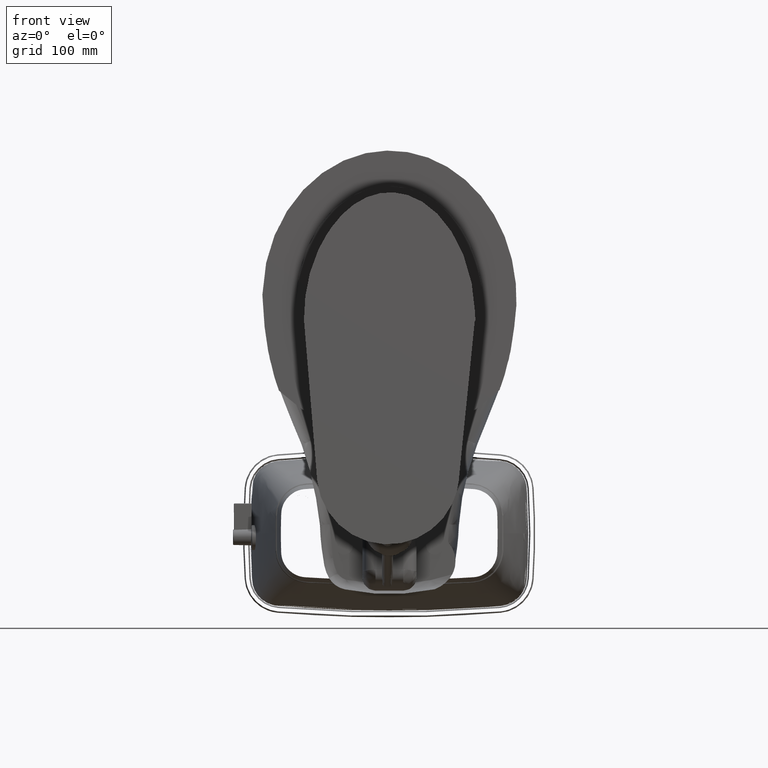
[diagram: clean part render]
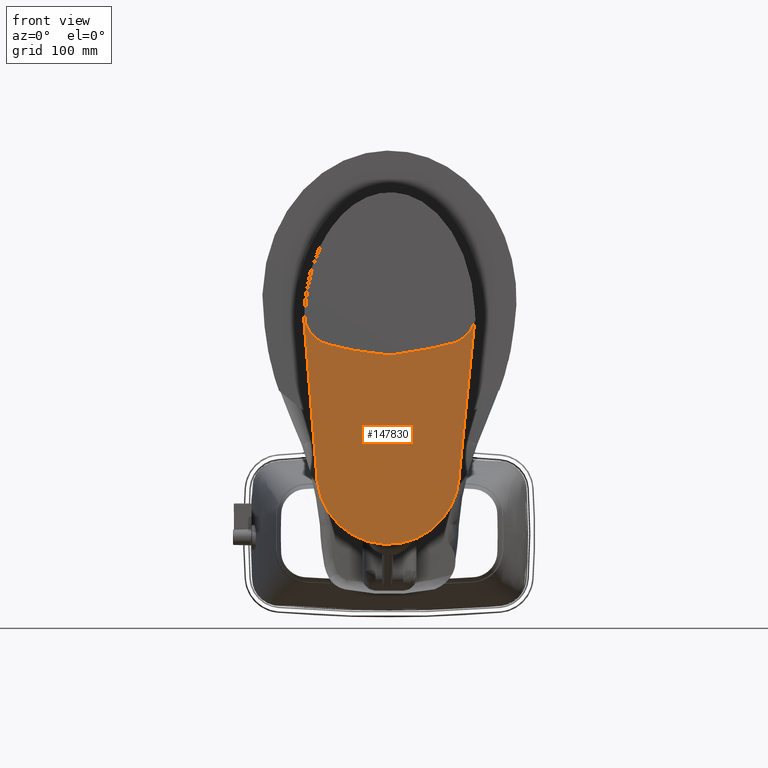
[diagram: same view with one face highlighted and labeled with its STEP entity id]
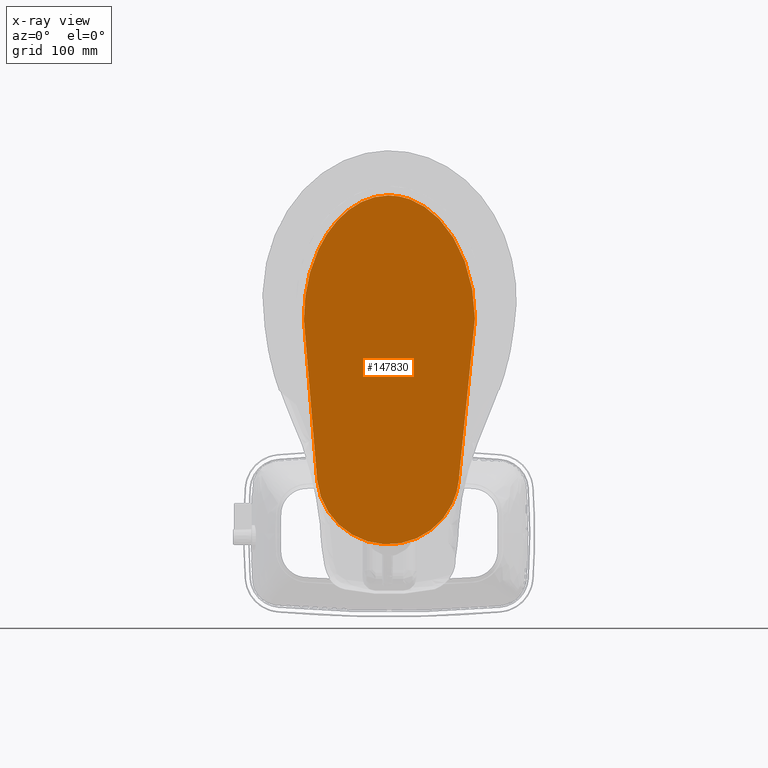
[diagram: x-ray of the same camera — body ghosted, the highlighted face saturated]
A machine part, front view. The second image highlights one B-rep face of the part: STEP entity #147830.
The next image is the same camera in x-ray: the body ghosted, the highlighted face saturated — about 0% of this face is hidden behind the body in this view.
In plain terms, the highlighted planar face has unit normal (0, -1, 0).
Its self-contained STEP definition (entity closure, byte-faithful):
#1370 = CARTESIAN_POINT ( 'NONE',  ( 4.193188648707874200, 5.541375388794488500, -1.777388185202513600E-019 ) ) ;
#9793 = CARTESIAN_POINT ( 'NONE',  ( -4.363099149692913200, 5.572962345098030600, 0.0000000000000000000 ) ) ;
#10912 = CARTESIAN_POINT ( 'NONE',  ( 5.149148719435038900, -5.368952237204724500, -1.818325990441472800E-017 ) ) ;
#11121 = CARTESIAN_POINT ( 'NONE',  ( -4.373053339677165100, 5.464362388194095900, -3.385141190425065800E-020 ) ) ;
#11348 = CARTESIAN_POINT ( 'NONE',  ( 4.205925246428346800, 5.371176392987401900, -1.129888320967306800E-018 ) ) ;
#11543 = B_SPLINE_CURVE_WITH_KNOTS ( 'NONE', 3,
 ( #195974, #103205, #179737, #149885 ),
 .UNSPECIFIED., .F., .F.,
 ( 4, 4 ),
 ( 0.0000000000000000000, 0.0001388203134932388600 ),
 .UNSPECIFIED. ) ;
#12370 = CARTESIAN_POINT ( 'NONE',  ( 4.208128983704330800, 5.316002305936220500, -1.707404996040164500E-017 ) ) ;
#16265 = CARTESIAN_POINT ( 'NONE',  ( 4.192721047973228600, 5.546374972435826200, 0.0000000000000000000 ) ) ;
#16813 = VERTEX_POINT ( 'NONE', #172116 ) ;
#20075 = CARTESIAN_POINT ( 'NONE',  ( -0.07156323617803149500, -11.60923061987795400, 0.0000000000000000000 ) ) ;
#21357 = AXIS2_PLACEMENT_3D ( 'NONE', #72159, #73479, #121529 ) ;
#27319 = ORIENTED_EDGE ( 'NONE', *, *, #55770, .T. ) ;
#28223 = ORIENTED_EDGE ( 'NONE', *, *, #179865, .T. ) ;
#28751 = CARTESIAN_POINT ( 'NONE',  ( -1.957749827311023600, 9.516992917024804700, 5.069541830281490200E-017 ) ) ;
#29394 = CARTESIAN_POINT ( 'NONE',  ( -4.362550821413385900, 5.578400135501968100, 0.0000000000000000000 ) ) ;
#33104 = VERTEX_POINT ( 'NONE', #162054 ) ;
#33602 = CARTESIAN_POINT ( 'NONE',  ( -1.690705847999212300, -11.38900763773621900, 6.315062271719722000E-017 ) ) ;
#34936 = CARTESIAN_POINT ( 'NONE',  ( -5.040019173074803400, -6.441023586877952000, 6.315062271719459500E-017 ) ) ;
#37409 = CARTESIAN_POINT ( 'NONE',  ( -0.07156323617803149500, -11.60923061987795400, 0.0000000000000000000 ) ) ;
#37637 = EDGE_CURVE ( 'NONE', #195428, #86074, #145080, .T. ) ;
#43182 = EDGE_CURVE ( 'NONE', #128004, #33104, #156888, .T. ) ;
#43370 = CARTESIAN_POINT ( 'NONE',  ( 3.070658474390275400, -10.42089057557480400, -1.818325990441169500E-017 ) ) ;
#44028 = CARTESIAN_POINT ( 'NONE',  ( 2.337701009358780000, -11.01859339509842800, -1.818325990441624400E-017 ) ) ;
#45010 = CARTESIAN_POINT ( 'NONE',  ( -0.7196515113094488200, 9.896003365968898200, 5.069541830293108000E-017 ) ) ;
#48082 = CARTESIAN_POINT ( 'NONE',  ( 4.193419528456299600, 5.538875324961417800, -1.777388185202513600E-019 ) ) ;
#51918 = CARTESIAN_POINT ( 'NONE',  ( -4.768252501224409900, -7.576169405370079000, 6.315062271717880500E-017 ) ) ;
#55770 = EDGE_CURVE ( 'NONE', #16813, #83980, #198882, .T. ) ;
#57609 = CARTESIAN_POINT ( 'NONE',  ( -4.379328572385827700, 5.355487882490158400, 1.195183497228115000E-016 ) ) ;
#58345 = CARTESIAN_POINT ( 'NONE',  ( 5.160757048409842600, -4.196737256389763400, -1.707404996040164500E-017 ) ) ;
#59018 = FACE_OUTER_BOUND ( 'NONE', #151690, .T. ) ;
#60271 = CARTESIAN_POINT ( 'NONE',  ( 0.7387837685848425200, -11.61700265281889900, -1.818325990441472800E-017 ) ) ;
#60583 = VERTEX_POINT ( 'NONE', #57609 ) ;
#60608 = CARTESIAN_POINT ( 'NONE',  ( 4.085053609940945100, 6.692739239895275600, 5.069541830286770600E-017 ) ) ;
#65395 = CARTESIAN_POINT ( 'NONE',  ( 4.192721047973228600, 5.546374972435826200, 0.0000000000000000000 ) ) ;
#68386 = CARTESIAN_POINT ( 'NONE',  ( 3.723690153071181500, -9.644873697066929100, -1.818325990441851500E-017 ) ) ;
#71736 = B_SPLINE_CURVE_WITH_KNOTS ( 'NONE', 4,
 ( #133719, #135033, #11121, #135682, #9793 ),
 .UNSPECIFIED., .F., .F.,
 ( 5, 5 ),
 ( 0.0000000000000000000, 0.005539880169654062100 ),
 .UNSPECIFIED. ) ;
#72159 = CARTESIAN_POINT ( 'NONE',  ( 0.001235436062688582800, -4.145643024350394300, 0.0000000000000000000 ) ) ;
#73479 = DIRECTION ( 'NONE',  ( 0.0000000000000000000, 0.0000000000000000000, -1.000000000000000000 ) ) ;
#82359 = CARTESIAN_POINT ( 'NONE',  ( -5.158286176283436200, -4.094548792310685100, -1.195183497228115000E-016 ) ) ;
#83584 = CARTESIAN_POINT ( 'NONE',  ( 4.193648460844094900, 5.536375082820471000, 0.0000000000000000000 ) ) ;
#83707 = CARTESIAN_POINT ( 'NONE',  ( -4.363099149692913200, 5.572962345098030600, 0.0000000000000000000 ) ) ;
#83980 = VERTEX_POINT ( 'NONE', #65395 ) ;
#86074 = VERTEX_POINT ( 'NONE', #58345 ) ;
#89792 = LINE ( 'NONE', #196716, #162443 ) ;
#91726 = CARTESIAN_POINT ( 'NONE',  ( 4.192721047973228600, 5.546374972435826200, 0.0000000000000000000 ) ) ;
#103205 = CARTESIAN_POINT ( 'NONE',  ( -4.362917526070866400, 5.574775057863780200, 5.239223206478565600E-025 ) ) ;
#103654 = CARTESIAN_POINT ( 'NONE',  ( 5.160757048409842600, -4.196737256389763400, -1.707404996040164500E-017 ) ) ;
#105186 = B_SPLINE_CURVE_WITH_KNOTS ( 'NONE', 4,
 ( #120380, #137876, #121030, #11348, #152786 ),
 .UNSPECIFIED., .F., .F.,
 ( 5, 5 ),
 ( 2.775557561562891400E-017, 0.005610233981358240400 ),
 .UNSPECIFIED. ) ;
#111680 = EDGE_CURVE ( 'NONE', #83980, #200216, #145631, .T. ) ;
#119281 = CARTESIAN_POINT ( 'NONE',  ( 4.996128014261811000, -6.539766840165354400, -1.818325990441397000E-017 ) ) ;
#120380 = CARTESIAN_POINT ( 'NONE',  ( 4.193648460844094900, 5.536375082820471000, 0.0000000000000000000 ) ) ;
#121030 = CARTESIAN_POINT ( 'NONE',  ( 4.202776392268109600, 5.426312731697638700, -1.129888320967306800E-018 ) ) ;
#121529 = DIRECTION ( 'NONE',  ( -1.000000000000000000, 0.0000000000000000000, 0.0000000000000000000 ) ) ;
#121573 = CARTESIAN_POINT ( 'NONE',  ( 3.639573955134960800, 7.807375872500788500, 5.069541830287614900E-017 ) ) ;
#123200 = CARTESIAN_POINT ( 'NONE',  ( 1.551126052595354500, -11.42021237659055200, -1.818325990441397000E-017 ) ) ;
#124628 = CARTESIAN_POINT ( 'NONE',  ( 4.192955821809842800, 5.543875272044094700, -1.777388185202513600E-019 ) ) ;
#125543 = EDGE_CURVE ( 'NONE', #129103, #16813, #11543, .T. ) ;
#128004 = VERTEX_POINT ( 'NONE', #37409 ) ;
#128434 = CARTESIAN_POINT ( 'NONE',  ( -0.8821327192590550100, -11.60145645314960600, 6.315062271718669400E-017 ) ) ;
#128602 = ORIENTED_EDGE ( 'NONE', *, *, #125543, .T. ) ;
#129103 = VERTEX_POINT ( 'NONE', #83707 ) ;
#132877 = ORIENTED_EDGE ( 'NONE', *, *, #43182, .T. ) ;
#133719 = CARTESIAN_POINT ( 'NONE',  ( -4.379328572385827700, 5.355487882490158400, 1.195183497228115000E-016 ) ) ;
#134491 = EDGE_CURVE ( 'NONE', #86074, #128004, #151618, .T. ) ;
#135033 = CARTESIAN_POINT ( 'NONE',  ( -4.376651548362205300, 5.409947775661416700, -3.385141190425065800E-020 ) ) ;
#135682 = CARTESIAN_POINT ( 'NONE',  ( -4.368535095637795100, 5.518708341435039500, -3.385141190425065800E-020 ) ) ;
#136463 = CARTESIAN_POINT ( 'NONE',  ( 2.866670491864567300, 8.779677559072048600, 5.069541830285080100E-017 ) ) ;
#137765 = CARTESIAN_POINT ( 'NONE',  ( -4.246304092933071300, 6.723926219464173600, 5.069541830287404100E-017 ) ) ;
#137876 = CARTESIAN_POINT ( 'NONE',  ( 4.198683391559843200, 5.481387031276378600, -1.129888320967306800E-018 ) ) ;
#141432 = CARTESIAN_POINT ( 'NONE',  ( 4.208128983704330800, 5.316002305936220500, 0.0000000000000000000 ) ) ;
#145080 = LINE ( 'NONE', #141432, #181523 ) ;
#145631 = B_SPLINE_CURVE_WITH_KNOTS ( 'NONE', 4,
 ( #16265, #124628, #1370, #48082, #171974 ),
 .UNSPECIFIED., .F., .F.,
 ( 5, 5 ),
 ( 0.0000000000000000000, 0.0002550872549774127500 ),
 .UNSPECIFIED. ) ;
#146333 = ORIENTED_EDGE ( 'NONE', *, *, #170614, .T. ) ;
#147830 = ADVANCED_FACE ( 'NONE', ( #59018 ), #197384, .T. ) ;
#149885 = CARTESIAN_POINT ( 'NONE',  ( -4.362550821413385900, 5.578400135501968100, 0.0000000000000000000 ) ) ;
#150626 = DIRECTION ( 'NONE',  ( 0.08215044102636977200, 0.9966199401171806900, 0.0000000000000000000 ) ) ;
#151014 = CARTESIAN_POINT ( 'NONE',  ( 4.702092549468504000, -7.669020806551182000, -1.818325990441699900E-017 ) ) ;
#151618 = B_SPLINE_CURVE_WITH_KNOTS ( 'NONE', 10,
 ( #103654, #10912, #119281, #151014, #197748, #68386, #43370, #44028, #123200, #60271, #199064 ),
 .UNSPECIFIED., .F., .F.,
 ( 11, 11 ),
 ( 1.387778780781445700E-017, 0.2540602236553483100 ),
 .UNSPECIFIED. ) ;
#151690 = EDGE_LOOP ( 'NONE', ( #200059, #190082, #180251, #132877, #28223, #146333, #128602, #27319, #187270 ) ) ;
#152015 = CARTESIAN_POINT ( 'NONE',  ( -3.012331161688188700, 8.801684572934647100, 5.069541830290361800E-017 ) ) ;
#152786 = CARTESIAN_POINT ( 'NONE',  ( 4.208128983704330800, 5.316002305936220500, -1.707404996040164500E-017 ) ) ;
#153329 = CARTESIAN_POINT ( 'NONE',  ( 1.817473899850629900, 9.502861027669684500, 5.069541830290573100E-017 ) ) ;
#156888 = B_SPLINE_CURVE_WITH_KNOTS ( 'NONE', 10,
 ( #20075, #128434, #33602, #189375, #172447, #190040, #173124, #51918, #34936, #159560, #82359 ),
 .UNSPECIFIED., .F., .F.,
 ( 11, 11 ),
 ( 0.0000000000000000000, 0.2537963566340266700 ),
 .UNSPECIFIED. ) ;
#156996 = DIRECTION ( 'NONE',  ( 0.09964395408030542200, -0.9950231567231196900, 0.0000000000000000000 ) ) ;
#159560 = CARTESIAN_POINT ( 'NONE',  ( -5.169897692287400500, -5.267085601204724000, 6.315062271718933200E-017 ) ) ;
#162054 = CARTESIAN_POINT ( 'NONE',  ( -5.158286176283436200, -4.094548792310685100, -1.195183497228115000E-016 ) ) ;
#162443 = VECTOR ( 'NONE', #150626, 39.37007874015748100 ) ;
#169054 = EDGE_CURVE ( 'NONE', #200216, #195428, #105186, .T. ) ;
#169568 = CARTESIAN_POINT ( 'NONE',  ( 0.5822477598414567100, 9.891129933877952100, 5.069541830281490200E-017 ) ) ;
#170614 = EDGE_CURVE ( 'NONE', #60583, #129103, #71736, .T. ) ;
#171974 = CARTESIAN_POINT ( 'NONE',  ( 4.193648460844094900, 5.536375082820471000, 0.0000000000000000000 ) ) ;
#172116 = CARTESIAN_POINT ( 'NONE',  ( -4.362550821413385900, 5.578400135501968100, 0.0000000000000000000 ) ) ;
#172447 = CARTESIAN_POINT ( 'NONE',  ( -3.190809443696849700, -10.36017267848818900, 6.315062271721038500E-017 ) ) ;
#173124 = CARTESIAN_POINT ( 'NONE',  ( -4.360435824515748800, -8.632268443779528500, 6.315062271720774700E-017 ) ) ;
#179737 = CARTESIAN_POINT ( 'NONE',  ( -4.362734749929134500, 5.576587655153543800, 5.239223206478565600E-025 ) ) ;
#179865 = EDGE_CURVE ( 'NONE', #33104, #60583, #89792, .T. ) ;
#180251 = ORIENTED_EDGE ( 'NONE', *, *, #134491, .T. ) ;
#181523 = VECTOR ( 'NONE', #156996, 39.37007874015748100 ) ;
#183180 = CARTESIAN_POINT ( 'NONE',  ( -3.792492145092126100, 7.835196511331496100, 5.069541830285503500E-017 ) ) ;
#187270 = ORIENTED_EDGE ( 'NONE', *, *, #111680, .T. ) ;
#189375 = CARTESIAN_POINT ( 'NONE',  ( -2.469497140599212300, -10.97215053859054900, 6.315062271717618000E-017 ) ) ;
#190040 = CARTESIAN_POINT ( 'NONE',  ( -3.828665557744094000, -9.571365104673228400, 6.315062271716565400E-017 ) ) ;
#190082 = ORIENTED_EDGE ( 'NONE', *, *, #37637, .T. ) ;
#195428 = VERTEX_POINT ( 'NONE', #12370 ) ;
#195974 = CARTESIAN_POINT ( 'NONE',  ( -4.363099149692913200, 5.572962345098030600, 0.0000000000000000000 ) ) ;
#196716 = CARTESIAN_POINT ( 'NONE',  ( -5.158286176283464600, -4.094548792311024400, 0.0000000000000000000 ) ) ;
#197384 = PLANE ( 'NONE',  #21357 ) ;
#197748 = CARTESIAN_POINT ( 'NONE',  ( 4.273669352717322800, -8.716616053606300000, -1.818325990441094000E-017 ) ) ;
#198882 = B_SPLINE_CURVE_WITH_KNOTS ( 'NONE', 11,
 ( #29394, #137765, #183180, #152015, #28751, #45010, #169568, #153329, #136463, #121573, #60608, #91726 ),
 .UNSPECIFIED., .F., .F.,
 ( 12, 12 ),
 ( 3.103167691559091400E-017, 0.3200617572617777700 ),
 .UNSPECIFIED. ) ;
#199064 = CARTESIAN_POINT ( 'NONE',  ( -0.07156323617803149500, -11.60923061987795400, 0.0000000000000000000 ) ) ;
#200059 = ORIENTED_EDGE ( 'NONE', *, *, #169054, .T. ) ;
#200216 = VERTEX_POINT ( 'NONE', #83584 ) ;